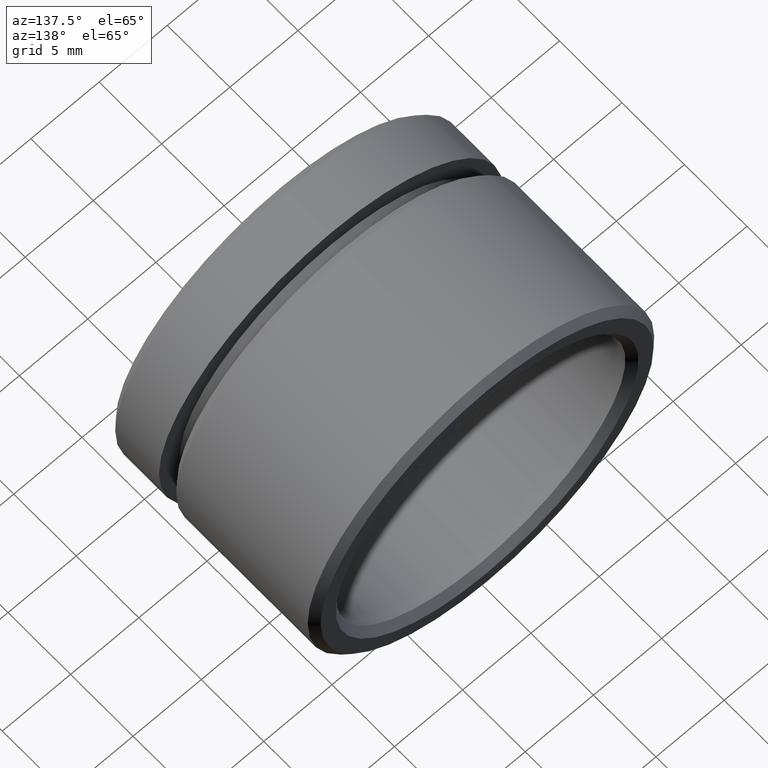
[diagram: clean part render]
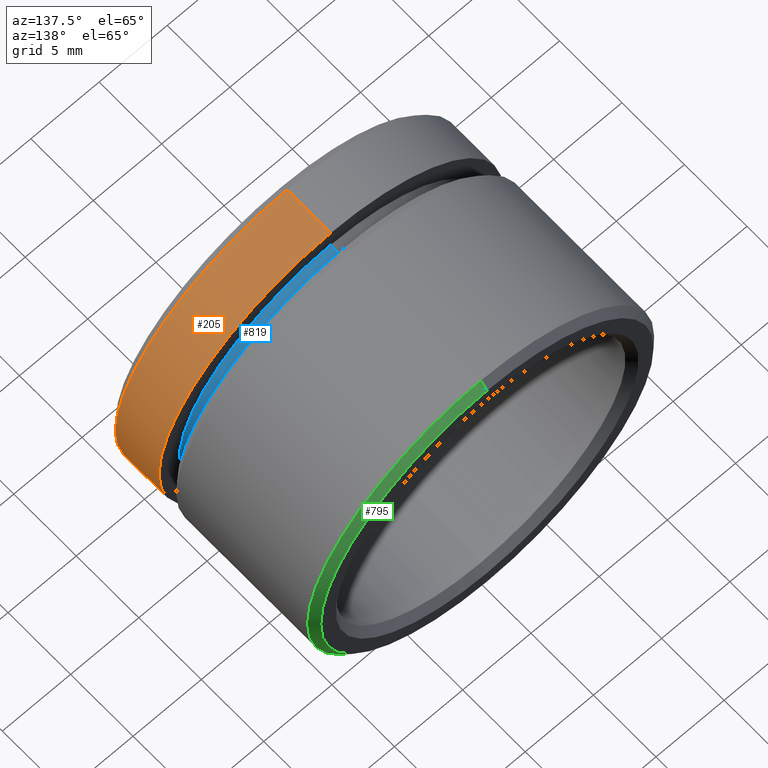
[diagram: same view with three faces highlighted in distinct colors, each labeled with its STEP entity id]
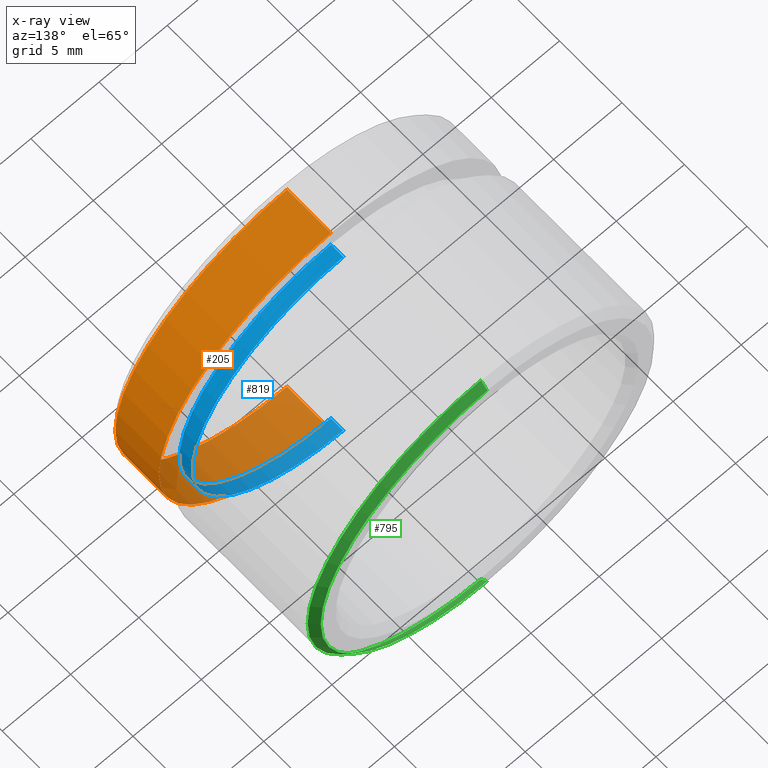
[diagram: x-ray of the same camera — body ghosted, the three highlighted faces saturated]
A machine part, auxiliary view with three faces highlighted in distinct colors.
The next image is the same camera in x-ray (body ghosted, the three faces saturated) — at least one of them is partly hidden behind the body in this view.
Their STEP definitions:

[orange] entity #205 — the highlighted cylindrical surface (partial cylindrical patch) has radius 12.6 mm, axis along (-0, -1, -0).
#41 = CARTESIAN_POINT ( 'NONE',  ( 0.0000000000000000000, 0.0000000000000000000, -12.60000000000000000 ) ) ;
#44 = DIRECTION ( 'NONE',  ( -0.0000000000000000000, -1.000000000000000000, -0.0000000000000000000 ) ) ;
#162 = EDGE_CURVE ( 'NONE', #231, #434, #336, .T. ) ;
#181 = ORIENTED_EDGE ( 'NONE', *, *, #301, .T. ) ;
#205 = ADVANCED_FACE ( 'NONE', ( #869 ), #462, .T. ) ;
#209 = ORIENTED_EDGE ( 'NONE', *, *, #314, .T. ) ;
#215 = AXIS2_PLACEMENT_3D ( 'NONE', #487, #218, #431 ) ;
#218 = DIRECTION ( 'NONE',  ( 0.0000000000000000000, 1.000000000000000000, 0.0000000000000000000 ) ) ;
#231 = VERTEX_POINT ( 'NONE', #441 ) ;
#244 = DIRECTION ( 'NONE',  ( -0.0000000000000000000, -1.000000000000000000, -0.0000000000000000000 ) ) ;
#252 = CARTESIAN_POINT ( 'NONE',  ( 0.0000000000000000000, 0.4999999999999970000, -12.60000000000000000 ) ) ;
#301 = EDGE_CURVE ( 'NONE', #842, #363, #607, .T. ) ;
#311 = EDGE_LOOP ( 'NONE', ( #209, #181, #825, #594 ) ) ;
#314 = EDGE_CURVE ( 'NONE', #231, #842, #609, .T. ) ;
#335 = CARTESIAN_POINT ( 'NONE',  ( 1.543054966925665100E-015, 0.4999999999999970000, 12.60000000000000000 ) ) ;
#336 = LINE ( 'NONE', #41, #692 ) ;
#363 = VERTEX_POINT ( 'NONE', #335 ) ;
#387 = CARTESIAN_POINT ( 'NONE',  ( 0.0000000000000000000, 4.000000000000000000, 0.0000000000000000000 ) ) ;
#401 = DIRECTION ( 'NONE',  ( 0.0000000000000000000, 0.0000000000000000000, -1.000000000000000000 ) ) ;
#404 = DIRECTION ( 'NONE',  ( -0.0000000000000000000, -1.000000000000000000, -0.0000000000000000000 ) ) ;
#414 = CARTESIAN_POINT ( 'NONE',  ( 1.543054966925665100E-015, 0.0000000000000000000, 12.60000000000000000 ) ) ;
#431 = DIRECTION ( 'NONE',  ( 0.0000000000000000000, 0.0000000000000000000, -1.000000000000000000 ) ) ;
#434 = VERTEX_POINT ( 'NONE', #252 ) ;
#441 = CARTESIAN_POINT ( 'NONE',  ( 0.0000000000000000000, 4.000000000000000000, -12.60000000000000000 ) ) ;
#462 = CYLINDRICAL_SURFACE ( 'NONE', #734, 12.60000000000000000 ) ;
#487 = CARTESIAN_POINT ( 'NONE',  ( 0.0000000000000000000, 0.4999999999999970000, 0.0000000000000000000 ) ) ;
#594 = ORIENTED_EDGE ( 'NONE', *, *, #162, .F. ) ;
#600 = VECTOR ( 'NONE', #244, 1000.000000000000000 ) ;
#607 = LINE ( 'NONE', #414, #600 ) ;
#609 = CIRCLE ( 'NONE', #622, 12.60000000000000000 ) ;
#622 = AXIS2_PLACEMENT_3D ( 'NONE', #387, #404, #401 ) ;
#661 = EDGE_CURVE ( 'NONE', #363, #434, #850, .T. ) ;
#692 = VECTOR ( 'NONE', #44, 1000.000000000000000 ) ;
#704 = CARTESIAN_POINT ( 'NONE',  ( 1.543054966925665100E-015, 4.000000000000000000, 12.60000000000000000 ) ) ;
#734 = AXIS2_PLACEMENT_3D ( 'NONE', #834, #868, #797 ) ;
#797 = DIRECTION ( 'NONE',  ( 0.0000000000000000000, 0.0000000000000000000, -1.000000000000000000 ) ) ;
#825 = ORIENTED_EDGE ( 'NONE', *, *, #661, .T. ) ;
#834 = CARTESIAN_POINT ( 'NONE',  ( 0.0000000000000000000, 0.0000000000000000000, 0.0000000000000000000 ) ) ;
#842 = VERTEX_POINT ( 'NONE', #704 ) ;
#850 = CIRCLE ( 'NONE', #215, 12.60000000000000000 ) ;
#868 = DIRECTION ( 'NONE',  ( -0.0000000000000000000, -1.000000000000000000, -0.0000000000000000000 ) ) ;
#869 = FACE_OUTER_BOUND ( 'NONE', #311, .T. ) ;

[blue] entity #819 — the highlighted cylindrical surface (partial cylindrical patch) has radius 11.1 mm, axis along (-0, -1, -0).
#5 = VECTOR ( 'NONE', #164, 1000.000000000000000 ) ;
#58 = VERTEX_POINT ( 'NONE', #256 ) ;
#60 = VERTEX_POINT ( 'NONE', #504 ) ;
#118 = ORIENTED_EDGE ( 'NONE', *, *, #326, .F. ) ;
#123 = AXIS2_PLACEMENT_3D ( 'NONE', #687, #608, #417 ) ;
#138 = CARTESIAN_POINT ( 'NONE',  ( 0.0000000000000000000, 5.000000000000000000, -11.10000000000000000 ) ) ;
#140 = CARTESIAN_POINT ( 'NONE',  ( 1.359357947053562200E-015, 0.0000000000000000000, 11.10000000000000000 ) ) ;
#146 = LINE ( 'NONE', #140, #5 ) ;
#152 = CARTESIAN_POINT ( 'NONE',  ( 0.0000000000000000000, 5.000000000000000000, 0.0000000000000000000 ) ) ;
#154 = CYLINDRICAL_SURFACE ( 'NONE', #123, 11.10000000000000000 ) ;
#164 = DIRECTION ( 'NONE',  ( -0.0000000000000000000, -1.000000000000000000, -0.0000000000000000000 ) ) ;
#194 = ORIENTED_EDGE ( 'NONE', *, *, #493, .F. ) ;
#228 = FACE_OUTER_BOUND ( 'NONE', #821, .T. ) ;
#230 = CIRCLE ( 'NONE', #443, 11.10000000000000000 ) ;
#256 = CARTESIAN_POINT ( 'NONE',  ( 1.359357947053562200E-015, 4.000000000000000000, 11.10000000000000000 ) ) ;
#265 = ORIENTED_EDGE ( 'NONE', *, *, #473, .T. ) ;
#326 = EDGE_CURVE ( 'NONE', #453, #60, #596, .T. ) ;
#356 = DIRECTION ( 'NONE',  ( -0.0000000000000000000, -1.000000000000000000, -0.0000000000000000000 ) ) ;
#376 = CARTESIAN_POINT ( 'NONE',  ( 0.0000000000000000000, 0.0000000000000000000, -11.10000000000000000 ) ) ;
#390 = CIRCLE ( 'NONE', #460, 11.10000000000000000 ) ;
#417 = DIRECTION ( 'NONE',  ( 0.0000000000000000000, 0.0000000000000000000, -1.000000000000000000 ) ) ;
#443 = AXIS2_PLACEMENT_3D ( 'NONE', #444, #534, #512 ) ;
#444 = CARTESIAN_POINT ( 'NONE',  ( 0.0000000000000000000, 4.000000000000000000, 0.0000000000000000000 ) ) ;
#453 = VERTEX_POINT ( 'NONE', #138 ) ;
#458 = EDGE_CURVE ( 'NONE', #453, #625, #390, .T. ) ;
#460 = AXIS2_PLACEMENT_3D ( 'NONE', #152, #836, #690 ) ;
#473 = EDGE_CURVE ( 'NONE', #625, #58, #146, .T. ) ;
#493 = EDGE_CURVE ( 'NONE', #60, #58, #230, .T. ) ;
#504 = CARTESIAN_POINT ( 'NONE',  ( 0.0000000000000000000, 4.000000000000000000, -11.10000000000000000 ) ) ;
#512 = DIRECTION ( 'NONE',  ( 0.0000000000000000000, 0.0000000000000000000, -1.000000000000000000 ) ) ;
#514 = ORIENTED_EDGE ( 'NONE', *, *, #458, .T. ) ;
#534 = DIRECTION ( 'NONE',  ( -0.0000000000000000000, -1.000000000000000000, -0.0000000000000000000 ) ) ;
#588 = VECTOR ( 'NONE', #356, 1000.000000000000000 ) ;
#596 = LINE ( 'NONE', #376, #588 ) ;
#597 = CARTESIAN_POINT ( 'NONE',  ( 1.359357947053562200E-015, 5.000000000000000000, 11.10000000000000000 ) ) ;
#608 = DIRECTION ( 'NONE',  ( -0.0000000000000000000, -1.000000000000000000, -0.0000000000000000000 ) ) ;
#625 = VERTEX_POINT ( 'NONE', #597 ) ;
#687 = CARTESIAN_POINT ( 'NONE',  ( 0.0000000000000000000, 0.0000000000000000000, 0.0000000000000000000 ) ) ;
#690 = DIRECTION ( 'NONE',  ( 0.0000000000000000000, 0.0000000000000000000, -1.000000000000000000 ) ) ;
#819 = ADVANCED_FACE ( 'NONE', ( #228 ), #154, .T. ) ;
#821 = EDGE_LOOP ( 'NONE', ( #514, #265, #194, #118 ) ) ;
#836 = DIRECTION ( 'NONE',  ( -0.0000000000000000000, -1.000000000000000000, -0.0000000000000000000 ) ) ;

[green] entity #795 — the highlighted conical surface has half-angle 45 deg.
#12 = CIRCLE ( 'NONE', #433, 12.69999999999999900 ) ;
#34 = LINE ( 'NONE', #442, #113 ) ;
#62 = CARTESIAN_POINT ( 'NONE',  ( 0.0000000000000000000, 16.50000000000000000, 0.0000000000000000000 ) ) ;
#90 = ORIENTED_EDGE ( 'NONE', *, *, #579, .F. ) ;
#113 = VECTOR ( 'NONE', #296, 1000.000000000000000 ) ;
#114 = VERTEX_POINT ( 'NONE', #364 ) ;
#125 = DIRECTION ( 'NONE',  ( 0.0000000000000000000, 1.000000000000000000, 0.0000000000000000000 ) ) ;
#136 = CONICAL_SURFACE ( 'NONE', #833, 12.69999999999999900, 0.7853981633974500600 ) ;
#137 = DIRECTION ( 'NONE',  ( 0.0000000000000000000, -0.7071067811865463500, -0.7071067811865487900 ) ) ;
#147 = EDGE_LOOP ( 'NONE', ( #90, #577, #225, #656 ) ) ;
#160 = DIRECTION ( 'NONE',  ( 0.0000000000000000000, 0.0000000000000000000, -1.000000000000000000 ) ) ;
#213 = FACE_OUTER_BOUND ( 'NONE', #147, .T. ) ;
#225 = ORIENTED_EDGE ( 'NONE', *, *, #505, .F. ) ;
#229 = CARTESIAN_POINT ( 'NONE',  ( 0.0000000000000000000, 15.99999999999999600, 0.0000000000000000000 ) ) ;
#239 = CARTESIAN_POINT ( 'NONE',  ( 1.555301434917138400E-015, 15.99999999999999600, 12.69999999999999900 ) ) ;
#267 = EDGE_CURVE ( 'NONE', #274, #114, #496, .T. ) ;
#272 = CARTESIAN_POINT ( 'NONE',  ( 1.524685264938454400E-015, 16.50000000000000000, 12.19999999999999400 ) ) ;
#274 = VERTEX_POINT ( 'NONE', #362 ) ;
#296 = DIRECTION ( 'NONE',  ( 8.659560562354950100E-017, -0.7071067811865463500, 0.7071067811865487900 ) ) ;
#303 = VECTOR ( 'NONE', #137, 1000.000000000000000 ) ;
#313 = AXIS2_PLACEMENT_3D ( 'NONE', #62, #125, #424 ) ;
#362 = CARTESIAN_POINT ( 'NONE',  ( 0.0000000000000000000, 16.50000000000000000, -12.19999999999999400 ) ) ;
#364 = CARTESIAN_POINT ( 'NONE',  ( 0.0000000000000000000, 15.99999999999999600, -12.69999999999999900 ) ) ;
#413 = DIRECTION ( 'NONE',  ( -0.0000000000000000000, -1.000000000000000000, -0.0000000000000000000 ) ) ;
#424 = DIRECTION ( 'NONE',  ( 0.0000000000000000000, 0.0000000000000000000, 1.000000000000000000 ) ) ;
#433 = AXIS2_PLACEMENT_3D ( 'NONE', #474, #621, #712 ) ;
#442 = CARTESIAN_POINT ( 'NONE',  ( 1.555301434917138400E-015, 15.99999999999999600, 12.69999999999999900 ) ) ;
#474 = CARTESIAN_POINT ( 'NONE',  ( 0.0000000000000000000, 15.99999999999999600, 0.0000000000000000000 ) ) ;
#496 = LINE ( 'NONE', #676, #303 ) ;
#505 = EDGE_CURVE ( 'NONE', #114, #813, #12, .T. ) ;
#520 = EDGE_CURVE ( 'NONE', #837, #813, #34, .T. ) ;
#577 = ORIENTED_EDGE ( 'NONE', *, *, #520, .T. ) ;
#579 = EDGE_CURVE ( 'NONE', #837, #274, #669, .T. ) ;
#621 = DIRECTION ( 'NONE',  ( -0.0000000000000000000, -1.000000000000000000, -0.0000000000000000000 ) ) ;
#656 = ORIENTED_EDGE ( 'NONE', *, *, #267, .F. ) ;
#669 = CIRCLE ( 'NONE', #313, 12.19999999999999400 ) ;
#676 = CARTESIAN_POINT ( 'NONE',  ( 0.0000000000000000000, 15.99999999999999600, -12.69999999999999900 ) ) ;
#712 = DIRECTION ( 'NONE',  ( 0.0000000000000000000, 0.0000000000000000000, 1.000000000000000000 ) ) ;
#795 = ADVANCED_FACE ( 'NONE', ( #213 ), #136, .T. ) ;
#813 = VERTEX_POINT ( 'NONE', #239 ) ;
#833 = AXIS2_PLACEMENT_3D ( 'NONE', #229, #413, #160 ) ;
#837 = VERTEX_POINT ( 'NONE', #272 ) ;